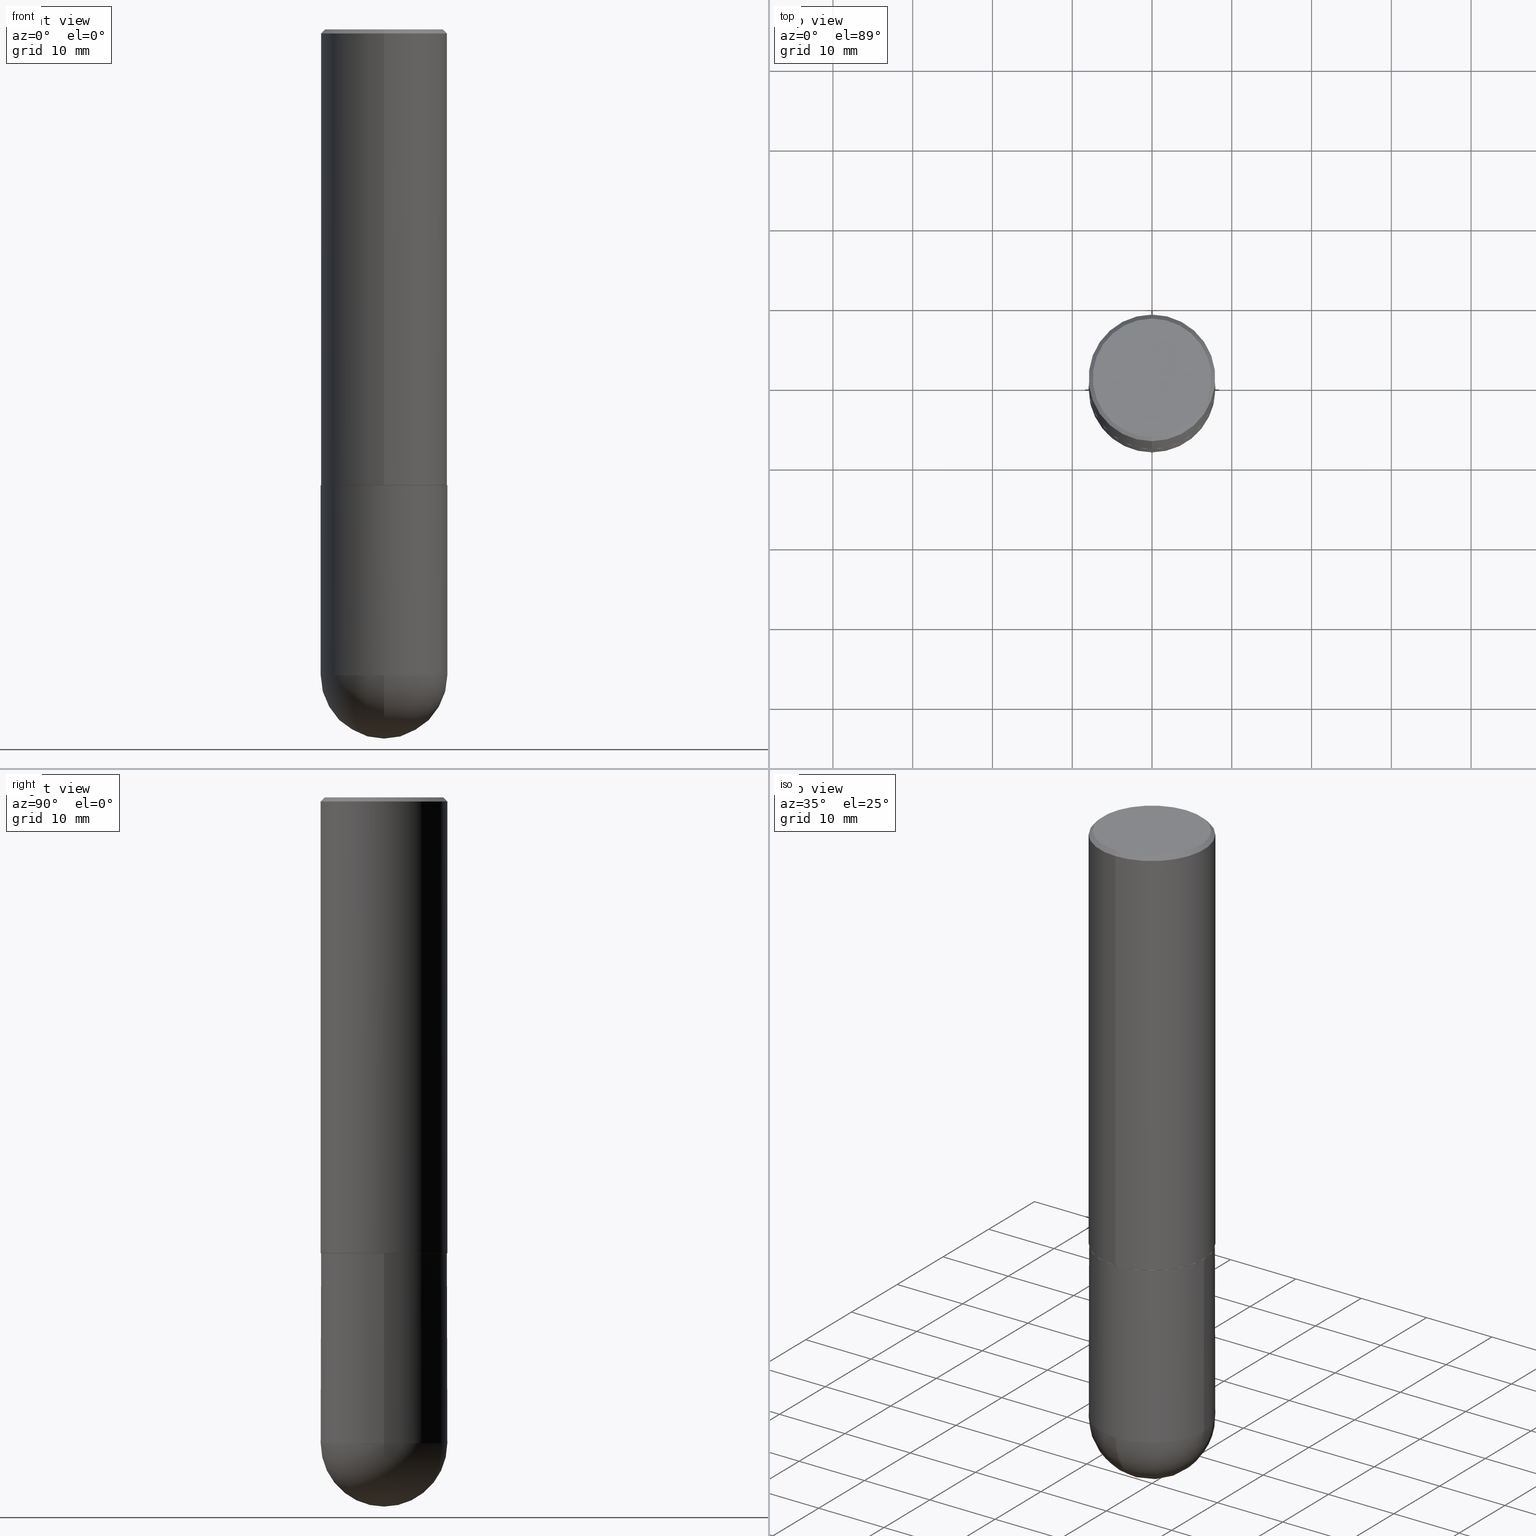
[diagram: canonical four-view strip — front | top / right | iso, engineering-drawing reading convention]
A machine part, canonical four-view strip (front | top / right | iso — engineering-drawing reading convention). The complete STEP part file that produces these views, byte-faithful:
ISO-10303-21;
HEADER;
FILE_DESCRIPTION (( 'STEP AP203' ),
    '1' );
FILE_NAME ('36848.STEP',
    '2024-02-21T19:08:51',
    ( '' ),
    ( '' ),
    'SwSTEP 2.0',
    'SolidWorks 2023',
    '' );
FILE_SCHEMA (( 'CONFIG_CONTROL_DESIGN' ));
ENDSEC;

DATA;
#1 = AXIS2_PLACEMENT_3D ( 'NONE', #403, #365, #40 ) ;
#2 = AXIS2_PLACEMENT_3D ( 'NONE', #387, #322, #61 ) ;
#3 =( NAMED_UNIT ( * ) PLANE_ANGLE_UNIT ( ) SI_UNIT ( $, .RADIAN. ) );
#4 = LINE ( 'NONE', #8, #139 ) ;
#5 = APPROVAL_ROLE ( '' ) ;
#6 = PERSON_AND_ORGANIZATION_ROLE ( 'design_supplier' ) ;
#7 = ADVANCED_FACE ( 'NONE', ( #32 ), #326, .T. ) ;
#8 = CARTESIAN_POINT ( 'NONE',  ( -0.3125000000000000000, 2.220446049250313081E-15, -1.537167215704658232E-29 ) ) ;
#9 = DIRECTION ( 'NONE',  ( 6.982962677686265922E-15, 1.000000000000000000, -3.496765431890253764E-15 ) ) ;
#10 = AXIS2_PLACEMENT_3D ( 'NONE', #306, #308, #16 ) ;
#11 = APPROVAL_STATUS ( 'not_yet_approved' ) ;
#12 = DIRECTION ( 'NONE',  ( -6.982962677686265922E-15, -1.000000000000000000, 3.507991003100177457E-15 ) ) ;
#13 = DIRECTION ( 'NONE',  ( -2.445464617341479708E-29, 3.491487337505676197E-15, 1.000000000000000000 ) ) ;
#14 = EDGE_CURVE ( 'NONE', #260, #277, #238, .T. ) ;
#15 = AXIS2_PLACEMENT_3D ( 'NONE', #176, #298, #80 ) ;
#16 = DIRECTION ( 'NONE',  ( 1.000000000000000000, -6.982962677686269077E-15, 0.000000000000000000 ) ) ;
#17 = VERTEX_POINT ( 'NONE', #290 ) ;
#18 = DIRECTION ( 'NONE',  ( 1.000000000000000000, -6.982962677686265922E-15, 4.883557194083112340E-29 ) ) ;
#19 = ADVANCED_FACE ( 'NONE', ( #235 ), #254, .T. ) ;
#20 = DIRECTION ( 'NONE',  ( 5.024295867788576727E-15, 0.7071067811866224018, 0.7071067811864726327 ) ) ;
#21 = AXIS2_PLACEMENT_3D ( 'NONE', #179, #105, #213 ) ;
#22 = APPROVAL_PERSON_ORGANIZATION ( #104, #324, #178 ) ;
#23 = ORIENTED_EDGE ( 'NONE', *, *, #14, .T. ) ;
#24 = ORIENTED_EDGE ( 'NONE', *, *, #354, .F. ) ;
#25 = CIRCLE ( 'NONE', #15, 0.3125000000000000000 ) ;
#26 = LOCAL_TIME ( 14, 8, 51.00000000000000000, #302 ) ;
#27 = DIRECTION ( 'NONE',  ( -2.445468806185136597E-29, 3.491481338843145583E-15, 1.000000000000000000 ) ) ;
#28 = EDGE_CURVE ( 'NONE', #130, #406, #4, .T. ) ;
#29 = VERTEX_POINT ( 'NONE', #133 ) ;
#30 = DIRECTION ( 'NONE',  ( -2.445464617341479708E-29, 3.491487337505675803E-15, 1.000000000000000000 ) ) ;
#31 = APPLICATION_PROTOCOL_DEFINITION ( 'international standard', 'config_control_design', 1994, #128 ) ;
#32 = FACE_OUTER_BOUND ( 'NONE', #317, .T. ) ;
#33 = VERTEX_POINT ( 'NONE', #388 ) ;
#34 = AXIS2_PLACEMENT_3D ( 'NONE', #296, #320, #393 ) ;
#35 = LOCAL_TIME ( 14, 8, 51.00000000000000000, #140 ) ;
#36 = DIRECTION ( 'NONE',  ( 0.000000000000000000, 0.000000000000000000, 1.000000000000000000 ) ) ;
#37 = ORIENTED_EDGE ( 'NONE', *, *, #212, .T. ) ;
#38 = EDGE_CURVE ( 'NONE', #260, #315, #407, .T. ) ;
#39 = PERSON_AND_ORGANIZATION ( #224, #246 ) ;
#40 = DIRECTION ( 'NONE',  ( -1.000000000000000000, 6.982962677686265922E-15, -4.876176775795935793E-29 ) ) ;
#41 = DIRECTION ( 'NONE',  ( -4.851104656540954809E-15, -0.7071067811865486830, -0.7071067811865462405 ) ) ;
#42 = AXIS2_PLACEMENT_3D ( 'NONE', #195, #27, #161 ) ;
#43 = DIRECTION ( 'NONE',  ( -4.937700262165053702E-15, -0.7071067811866175168, 0.7071067811864775177 ) ) ;
#44 = ORIENTED_EDGE ( 'NONE', *, *, #94, .F. ) ;
#45 = APPROVAL ( #321, 'UNSPECIFIED' ) ;
#46 = CARTESIAN_POINT ( 'NONE',  ( 0.000000000000000000, 0.000000000000000000, 0.000000000000000000 ) ) ;
#47 = CYLINDRICAL_SURFACE ( 'NONE', #54, 0.3125000000000000000 ) ;
#48 = EDGE_LOOP ( 'NONE', ( #188, #76, #375, #318 ) ) ;
#49 = EDGE_CURVE ( 'NONE', #256, #33, #157, .T. ) ;
#50 = CONICAL_SURFACE ( 'NONE', #192, 0.3114999999999999991, 0.7853981633975507526 ) ;
#51 = LINE ( 'NONE', #205, #312 ) ;
#52 = DIRECTION ( 'NONE',  ( -6.982962677686265922E-15, -1.000000000000000000, 3.496765431890253764E-15 ) ) ;
#53 = APPROVAL_DATE_TIME ( #257, #45 ) ;
#54 = AXIS2_PLACEMENT_3D ( 'NONE', #110, #266, #248 ) ;
#55 = ORIENTED_EDGE ( 'NONE', *, *, #112, .F. ) ;
#56 = VERTEX_POINT ( 'NONE', #71 ) ;
#57 = CC_DESIGN_PERSON_AND_ORGANIZATION_ASSIGNMENT ( #93, #79, ( #58 ) ) ;
#58 = PRODUCT ( '36848', '36848', '', ( #122 ) ) ;
#59 = CARTESIAN_POINT ( 'NONE',  ( 2.213340621892766504E-15, 0.3114999999999921720, -2.250000000000000888 ) ) ;
#60 =( NAMED_UNIT ( * ) SI_UNIT ( $, .STERADIAN. ) SOLID_ANGLE_UNIT ( ) );
#61 = DIRECTION ( 'NONE',  ( 1.000000000000000000, -6.982962677686269077E-15, 0.000000000000000000 ) ) ;
#62 = DIRECTION ( 'NONE',  ( -2.445468806185136877E-29, 3.491481338843145188E-15, 1.000000000000000000 ) ) ;
#63 = CIRCLE ( 'NONE', #297, 0.3114999999999999991 ) ;
#64 = COORDINATED_UNIVERSAL_TIME_OFFSET ( 5, 0, .BEHIND. ) ;
#65 = CIRCLE ( 'NONE', #299, 0.2925000000000003153 ) ;
#66 = CIRCLE ( 'NONE', #2, 0.3125000000000000000 ) ;
#67 = CARTESIAN_POINT ( 'NONE',  ( 5.502295389018328433E-29, -7.855846509387772035E-15, -2.249999999999999556 ) ) ;
#68 = CARTESIAN_POINT ( 'NONE',  ( 4.890929234682977809E-31, -6.982974675011377983E-17, -0.02000000000000007327 ) ) ;
#69 = DIRECTION ( 'NONE',  ( -1.000000000000000000, 6.982962677686265922E-15, -4.883557194083112901E-29 ) ) ;
#70 = ORIENTED_EDGE ( 'NONE', *, *, #234, .F. ) ;
#71 = CARTESIAN_POINT ( 'NONE',  ( 2.182175836777035261E-15, 0.3124999999999887867, -3.187500000000000888 ) ) ;
#72 = AXIS2_PLACEMENT_3D ( 'NONE', #259, #100, #136 ) ;
#73 = ADVANCED_FACE ( 'NONE', ( #197 ), #231, .T. ) ;
#74 = APPLICATION_CONTEXT ( 'configuration controlled 3d designs of mechanical parts and assemblies' ) ;
#75 = CALENDAR_DATE ( 2024, 21, 2 ) ;
#76 = ORIENTED_EDGE ( 'NONE', *, *, #354, .T. ) ;
#77 = PERSON_AND_ORGANIZATION ( #224, #246 ) ;
#78 = CYLINDRICAL_SURFACE ( 'NONE', #21, 0.3125000000000002220 ) ;
#79 = PERSON_AND_ORGANIZATION_ROLE ( 'design_owner' ) ;
#80 = DIRECTION ( 'NONE',  ( 1.000000000000000000, -6.982962677686269077E-15, 0.000000000000000000 ) ) ;
#81 = AXIS2_PLACEMENT_3D ( 'NONE', #278, #251, #92 ) ;
#82 = APPROVAL_STATUS ( 'not_yet_approved' ) ;
#83 = CARTESIAN_POINT ( 'NONE',  ( 2.182175836776959530E-15, 0.3125000000000000555, -0.02000000000000116615 ) ) ;
#84 = DIRECTION ( 'NONE',  ( -2.445464617341479708E-29, 3.491487337505676197E-15, 1.000000000000000000 ) ) ;
#85 = PERSON_AND_ORGANIZATION_ROLE ( 'creator' ) ;
#86 = CYLINDRICAL_SURFACE ( 'NONE', #116, 0.3125000000000002220 ) ;
#87 = CARTESIAN_POINT ( 'NONE',  ( 8.241383017002520278E-29, -1.267523194785438148E-14, -3.500000000000000444 ) ) ;
#88 = VECTOR ( 'NONE', #172, 39.37007874015748854 ) ;
#89 = CC_DESIGN_SECURITY_CLASSIFICATION ( #154, ( #300 ) ) ;
#90 = ADVANCED_FACE ( 'NONE', ( #263 ), #50, .T. ) ;
#91 = ORIENTED_EDGE ( 'NONE', *, *, #152, .T. ) ;
#92 = DIRECTION ( 'NONE',  ( 6.982962677686265922E-15, 1.000000000000000000, -3.491487337505675803E-15 ) ) ;
#93 = PERSON_AND_ORGANIZATION ( #224, #246 ) ;
#94 = EDGE_CURVE ( 'NONE', #56, #130, #146, .T. ) ;
#95 =( LENGTH_UNIT ( ) NAMED_UNIT ( * ) SI_UNIT ( $, .METRE. ) );
#96 = ORIENTED_EDGE ( 'NONE', *, *, #189, .F. ) ;
#97 = DIRECTION ( 'NONE',  ( 1.000000000000000000, -6.982962677686266711E-15, 4.876176775795936353E-29 ) ) ;
#98 = DATE_AND_TIME ( #291, #343 ) ;
#99 = AXIS2_PLACEMENT_3D ( 'NONE', #191, #228, #283 ) ;
#100 = DIRECTION ( 'NONE',  ( -1.000000000000000000, 7.105427357601001070E-15, -4.926315508542082329E-29 ) ) ;
#101 = DIRECTION ( 'NONE',  ( -6.982962677686265922E-15, -1.000000000000000000, 3.507991003100177457E-15 ) ) ;
#102 = CARTESIAN_POINT ( 'NONE',  ( 0.000000000000000000, 0.000000000000000000, 0.000000000000000000 ) ) ;
#103 = CIRCLE ( 'NONE', #42, 0.3125000000000000000 ) ;
#104 = PERSON_AND_ORGANIZATION ( #224, #246 ) ;
#105 = DIRECTION ( 'NONE',  ( -2.445464617341479708E-29, 3.491487337505676197E-15, 1.000000000000000000 ) ) ;
#106 = ORIENTED_EDGE ( 'NONE', *, *, #49, .T. ) ;
#107 = APPROVAL_ROLE ( '' ) ;
#108 = PLANE ( 'NONE',  #1 ) ;
#109 = DIRECTION ( 'NONE',  ( -2.445464617341479708E-29, 3.491487337505676197E-15, 1.000000000000000000 ) ) ;
#110 = CARTESIAN_POINT ( 'NONE',  ( 0.000000000000000000, 0.000000000000000000, 0.000000000000000000 ) ) ;
#111 = ORIENTED_EDGE ( 'NONE', *, *, #202, .F. ) ;
#112 = EDGE_CURVE ( 'NONE', #17, #332, #193, .T. ) ;
#113 = DIRECTION ( 'NONE',  ( 1.000000000000000000, -6.982962677686269077E-15, 0.000000000000000000 ) ) ;
#114 = ORIENTED_EDGE ( 'NONE', *, *, #376, .T. ) ;
#115 = EDGE_CURVE ( 'NONE', #17, #56, #103, .T. ) ;
#116 = AXIS2_PLACEMENT_3D ( 'NONE', #46, #396, #247 ) ;
#117 = APPROVAL_PERSON_ORGANIZATION ( #39, #165, #107 ) ;
#118 = CARTESIAN_POINT ( 'NONE',  ( 0.3125000000000000000, -1.003800884917403522E-14, -2.249999999999999556 ) ) ;
#119 = ADVANCED_FACE ( 'NONE', ( #284 ), #352, .F. ) ;
#120 = ORIENTED_EDGE ( 'NONE', *, *, #171, .T. ) ;
#121 = DIRECTION ( 'NONE',  ( -2.445464617341479708E-29, 3.491487337505676197E-15, 1.000000000000000000 ) ) ;
#122 = MECHANICAL_CONTEXT ( 'NONE', #128, 'mechanical' ) ;
#123 = AXIS2_PLACEMENT_3D ( 'NONE', #410, #69, #357 ) ;
#124 = AXIS2_PLACEMENT_3D ( 'NONE', #380, #221, #184 ) ;
#125 = EDGE_CURVE ( 'NONE', #332, #406, #378, .T. ) ;
#126 = ORIENTED_EDGE ( 'NONE', *, *, #14, .F. ) ;
#127 = EDGE_LOOP ( 'NONE', ( #111, #374, #272, #185 ) ) ;
#128 = APPLICATION_CONTEXT ( 'configuration controlled 3d designs of mechanical parts and assemblies' ) ;
#129 = CARTESIAN_POINT ( 'NONE',  ( 7.463812041801236655E-29, -1.160327913570257494E-14, -3.187500000000000000 ) ) ;
#130 = VERTEX_POINT ( 'NONE', #303 ) ;
#131 = CC_DESIGN_APPROVAL ( #165, ( #292 ) ) ;
#132 = ADVANCED_FACE ( 'NONE', ( #328 ), #86, .T. ) ;
#133 = CARTESIAN_POINT ( 'NONE',  ( 2.220446049250342269E-15, 0.3124999999999924505, -2.249000000000000998 ) ) ;
#134 = VERTEX_POINT ( 'NONE', #363 ) ;
#135 = SECURITY_CLASSIFICATION_LEVEL ( 'unclassified' ) ;
#136 = DIRECTION ( 'NONE',  ( -7.105427357601000281E-15, -1.000000000000000000, 0.000000000000000000 ) ) ;
#137 = APPLICATION_PROTOCOL_DEFINITION ( 'international standard', 'config_control_design', 1994, #74 ) ;
#138 = ORIENTED_EDGE ( 'NONE', *, *, #398, .T. ) ;
#139 = VECTOR ( 'NONE', #62, 39.37007874015748143 ) ;
#140 = COORDINATED_UNIVERSAL_TIME_OFFSET ( 5, 0, .BEHIND. ) ;
#141 = DIRECTION ( 'NONE',  ( -2.445464617341479708E-29, 3.491487337505676197E-15, 1.000000000000000000 ) ) ;
#142 = ORIENTED_EDGE ( 'NONE', *, *, #208, .F. ) ;
#143 = DESIGN_CONTEXT ( 'detailed design', #74, 'design' ) ;
#144 = DIRECTION ( 'NONE',  ( -2.445464617341479708E-29, 3.491487337505676197E-15, 1.000000000000000000 ) ) ;
#145 = FACE_OUTER_BOUND ( 'NONE', #200, .T. ) ;
#146 = CIRCLE ( 'NONE', #153, 0.3125000000000000000 ) ;
#147 = CIRCLE ( 'NONE', #392, 0.3125000000000001665 ) ;
#148 = ADVANCED_FACE ( 'NONE', ( #145 ), #397, .T. ) ;
#149 = DIRECTION ( 'NONE',  ( -2.445464617341479708E-29, 3.491487337505675803E-15, 1.000000000000000000 ) ) ;
#150 = CARTESIAN_POINT ( 'NONE',  ( 2.112346210000097415E-15, 0.2925000000000003153, -1.170656228765135543E-15 ) ) ;
#151 = ORIENTED_EDGE ( 'NONE', *, *, #337, .F. ) ;
#152 = EDGE_CURVE ( 'NONE', #406, #332, #25, .T. ) ;
#153 = AXIS2_PLACEMENT_3D ( 'NONE', #385, #233, #198 ) ;
#154 = SECURITY_CLASSIFICATION ( '', '', #135 ) ;
#155 = PLANE ( 'NONE',  #81 ) ;
#156 = FACE_OUTER_BOUND ( 'NONE', #294, .T. ) ;
#157 = CIRCLE ( 'NONE', #72, 0.3125000000000002776 ) ;
#158 = EDGE_LOOP ( 'NONE', ( #37, #383, #151, #70 ) ) ;
#159 = MANIFOLD_SOLID_BREP ( 'Body-Move/Copy2[2]', #236 ) ;
#160 = ORIENTED_EDGE ( 'NONE', *, *, #265, .T. ) ;
#161 = DIRECTION ( 'NONE',  ( 1.000000000000000000, -6.982962677686269077E-15, 0.000000000000000000 ) ) ;
#162 = EDGE_CURVE ( 'NONE', #130, #33, #264, .T. ) ;
#163 = FACE_OUTER_BOUND ( 'NONE', #282, .T. ) ;
#164 = DIRECTION ( 'NONE',  ( -6.982962677686265922E-15, -1.000000000000000000, 3.491487337505675803E-15 ) ) ;
#165 = APPROVAL ( #11, 'UNSPECIFIED' ) ;
#166 = CARTESIAN_POINT ( 'NONE',  ( 5.502295389018328433E-29, -7.855846509387772035E-15, -2.249999999999999556 ) ) ;
#167 = AXIS2_PLACEMENT_3D ( 'NONE', #210, #121, #52 ) ;
#168 = ORIENTED_EDGE ( 'NONE', *, *, #115, .F. ) ;
#169 = CALENDAR_DATE ( 2024, 21, 2 ) ;
#170 = PERSON_AND_ORGANIZATION_ROLE ( 'classification_officer' ) ;
#171 = EDGE_CURVE ( 'NONE', #315, #260, #65, .T. ) ;
#172 = DIRECTION ( 'NONE',  ( 4.937700262164538576E-15, 0.7071067811865437980, -0.7071067811865511255 ) ) ;
#173 = LINE ( 'NONE', #330, #288 ) ;
#174 = CIRCLE ( 'NONE', #250, 0.3125000000000002776 ) ;
#175 = PERSON_AND_ORGANIZATION ( #224, #246 ) ;
#176 = CARTESIAN_POINT ( 'NONE',  ( 5.502304813916556222E-29, -7.855833012397076871E-15, -2.249999999999999556 ) ) ;
#177 = ORIENTED_EDGE ( 'NONE', *, *, #38, .T. ) ;
#178 = APPROVAL_ROLE ( '' ) ;
#179 = CARTESIAN_POINT ( 'NONE',  ( 0.000000000000000000, 0.000000000000000000, 0.000000000000000000 ) ) ;
#180 = CARTESIAN_POINT ( 'NONE',  ( 5.499849924400987156E-29, -7.852355022050265044E-15, -2.248999999999999666 ) ) ;
#181 = LOCAL_TIME ( 14, 8, 51.00000000000000000, #305 ) ;
#182 = DIRECTION ( 'NONE',  ( -2.445464617341479708E-29, 3.491487337505675803E-15, 1.000000000000000000 ) ) ;
#183 = ORIENTED_EDGE ( 'NONE', *, *, #38, .F. ) ;
#184 = DIRECTION ( 'NONE',  ( -6.982962677686265133E-15, -1.000000000000000000, 3.496765431890254947E-15 ) ) ;
#185 = ORIENTED_EDGE ( 'NONE', *, *, #361, .F. ) ;
#186 = CIRCLE ( 'NONE', #386, 0.3125000000000002776 ) ;
#187 = CC_DESIGN_APPROVAL ( #324, ( #300 ) ) ;
#188 = ORIENTED_EDGE ( 'NONE', *, *, #189, .T. ) ;
#189 = EDGE_CURVE ( 'NONE', #204, #134, #63, .T. ) ;
#190 = ORIENTED_EDGE ( 'NONE', *, *, #115, .T. ) ;
#191 = CARTESIAN_POINT ( 'NONE',  ( 4.890929234682977809E-31, -6.982974675011377983E-17, -0.02000000000000007327 ) ) ;
#192 = AXIS2_PLACEMENT_3D ( 'NONE', #166, #286, #101 ) ;
#193 = LINE ( 'NONE', #319, #280 ) ;
#194 = CALENDAR_DATE ( 2024, 21, 2 ) ;
#195 = CARTESIAN_POINT ( 'NONE',  ( 7.794931819715121781E-29, -1.112909676756252622E-14, -3.187500000000000000 ) ) ;
#196 = CC_DESIGN_PERSON_AND_ORGANIZATION_ASSIGNMENT ( #175, #85, ( #292 ) ) ;
#197 = FACE_OUTER_BOUND ( 'NONE', #400, .T. ) ;
#198 = DIRECTION ( 'NONE',  ( 1.000000000000000000, -6.982962677686269077E-15, 0.000000000000000000 ) ) ;
#199 = AXIS2_PLACEMENT_3D ( 'NONE', #412, #214, #113 ) ;
#200 = EDGE_LOOP ( 'NONE', ( #24, #404, #160, #216 ) ) ;
#201 = CONICAL_SURFACE ( 'NONE', #215, 0.3125000000000001665, 0.7853981633974466137 ) ;
#202 = EDGE_CURVE ( 'NONE', #29, #277, #333, .T. ) ;
#203 = PERSON_AND_ORGANIZATION ( #224, #246 ) ;
#204 = VERTEX_POINT ( 'NONE', #336 ) ;
#205 = CARTESIAN_POINT ( 'NONE',  ( -2.182175836776959530E-15, -0.3125000000000002220, 1.091089792970524551E-15 ) ) ;
#206 = APPROVAL_DATE_TIME ( #295, #165 ) ;
#207 = DIRECTION ( 'NONE',  ( -2.445464617341479708E-29, 3.491487337505676197E-15, 1.000000000000000000 ) ) ;
#208 = EDGE_CURVE ( 'NONE', #256, #56, #186, .T. ) ;
#209 = CIRCLE ( 'NONE', #255, 0.3114999999999999991 ) ;
#210 = CARTESIAN_POINT ( 'NONE',  ( 5.499849924400987156E-29, -7.852355022050265044E-15, -2.248999999999999666 ) ) ;
#211 = EDGE_LOOP ( 'NONE', ( #177, #120 ) ) ;
#212 = EDGE_CURVE ( 'NONE', #377, #29, #174, .T. ) ;
#213 = DIRECTION ( 'NONE',  ( -6.982962677686265922E-15, -1.000000000000000000, 3.491487337505676197E-15 ) ) ;
#214 = DIRECTION ( 'NONE',  ( -2.445468806185136597E-29, 3.491481338843145583E-15, 1.000000000000000000 ) ) ;
#215 = AXIS2_PLACEMENT_3D ( 'NONE', #68, #281, #232 ) ;
#216 = ORIENTED_EDGE ( 'NONE', *, *, #287, .F. ) ;
#217 = ADVANCED_FACE ( 'NONE', ( #401 ), #78, .T. ) ;
#218 = ORIENTED_EDGE ( 'NONE', *, *, #398, .F. ) ;
#219 = ADVANCED_BREP_SHAPE_REPRESENTATION ( '36848', ( #307, #159, #379 ), #368 ) ;
#220 = CC_DESIGN_PERSON_AND_ORGANIZATION_ASSIGNMENT ( #389, #170, ( #154 ) ) ;
#221 = DIRECTION ( 'NONE',  ( -2.445464617341479708E-29, 3.491487337505676197E-15, 1.000000000000000000 ) ) ;
#222 = DATE_TIME_ROLE ( 'classification_date' ) ;
#223 = LENGTH_MEASURE_WITH_UNIT ( LENGTH_MEASURE( 0.02539999999999999897 ), #95 );
#224 = PERSON ( 'UNSPECIFIED', 'UNSPECIFIED', 'UNSPECIFIED', ('UNSPECIFIED'), ('UNSPECIFIED'), ('UNSPECIFIED') ) ;
#225 = COORDINATED_UNIVERSAL_TIME_OFFSET ( 5, 0, .BEHIND. ) ;
#226 = AXIS2_PLACEMENT_3D ( 'NONE', #129, #353, #9 ) ;
#227 = EDGE_CURVE ( 'NONE', #134, #204, #209, .T. ) ;
#228 = DIRECTION ( 'NONE',  ( 2.445464617341479708E-29, -3.491487337505676197E-15, -1.000000000000000000 ) ) ;
#229 = DIRECTION ( 'NONE',  ( -2.445468806185136877E-29, 3.491481338843145188E-15, 1.000000000000000000 ) ) ;
#230 = ORIENTED_EDGE ( 'NONE', *, *, #227, .F. ) ;
#231 = CYLINDRICAL_SURFACE ( 'NONE', #359, 0.3125000000000000000 ) ;
#232 = DIRECTION ( 'NONE',  ( 6.982962677686265133E-15, 1.000000000000000000, -3.496765431890254947E-15 ) ) ;
#233 = DIRECTION ( 'NONE',  ( -2.445468806185136597E-29, 3.491481338843145583E-15, 1.000000000000000000 ) ) ;
#234 = EDGE_CURVE ( 'NONE', #377, #395, #51, .T. ) ;
#235 = FACE_OUTER_BOUND ( 'NONE', #390, .T. ) ;
#236 = CLOSED_SHELL ( 'NONE', ( #90, #217, #384, #381, #132, #148, #119, #311 ) ) ;
#237 = CONICAL_SURFACE ( 'NONE', #99, 0.3125000000000001665, 0.7853981633974466137 ) ;
#238 = LINE ( 'NONE', #360, #88 ) ;
#239 = FACE_OUTER_BOUND ( 'NONE', #402, .T. ) ;
#240 = CARTESIAN_POINT ( 'NONE',  ( -2.182175836776905099E-15, -0.3125000000000081601, -2.248999999999998778 ) ) ;
#241 = ORIENTED_EDGE ( 'NONE', *, *, #28, .F. ) ;
#242 = CALENDAR_DATE ( 2024, 21, 2 ) ;
#243 = CARTESIAN_POINT ( 'NONE',  ( 7.463812041801236655E-29, -1.160327913570257494E-14, -3.187500000000000000 ) ) ;
#244 = DIRECTION ( 'NONE',  ( -6.982962677686265133E-15, -1.000000000000000000, 3.496765431890254947E-15 ) ) ;
#245 = ORIENTED_EDGE ( 'NONE', *, *, #171, .F. ) ;
#246 = ORGANIZATION ( 'UNSPECIFIED', 'UNSPECIFIED', '' ) ;
#247 = DIRECTION ( 'NONE',  ( -6.982962677686265922E-15, -1.000000000000000000, 3.491487337505676197E-15 ) ) ;
#248 = DIRECTION ( 'NONE',  ( 1.000000000000000000, -6.982962677686266711E-15, 4.876176775795936353E-29 ) ) ;
#249 = ADVANCED_FACE ( 'NONE', ( #239 ), #47, .T. ) ;
#250 = AXIS2_PLACEMENT_3D ( 'NONE', #180, #207, #273 ) ;
#251 = DIRECTION ( 'NONE',  ( 2.445464617341479708E-29, -3.491487337505675803E-15, -1.000000000000000000 ) ) ;
#252 = ORIENTED_EDGE ( 'NONE', *, *, #28, .T. ) ;
#253 = ORIENTED_EDGE ( 'NONE', *, *, #125, .T. ) ;
#254 = SPHERICAL_SURFACE ( 'NONE', #226, 0.3125000000000002776 ) ;
#255 = AXIS2_PLACEMENT_3D ( 'NONE', #270, #109, #367 ) ;
#256 = VERTEX_POINT ( 'NONE', #87 ) ;
#257 = DATE_AND_TIME ( #194, #350 ) ;
#258 = CARTESIAN_POINT ( 'NONE',  ( 0.000000000000000000, 0.000000000000000000, 0.000000000000000000 ) ) ;
#259 = CARTESIAN_POINT ( 'NONE',  ( 7.463812041801236655E-29, -1.160327913570257494E-14, -3.187500000000000000 ) ) ;
#260 = VERTEX_POINT ( 'NONE', #150 ) ;
#261 = ADVANCED_FACE ( 'NONE', ( #274 ), #108, .F. ) ;
#262 = DATE_AND_TIME ( #169, #181 ) ;
#263 = FACE_OUTER_BOUND ( 'NONE', #48, .T. ) ;
#264 = CIRCLE ( 'NONE', #10, 0.3125000000000000000 ) ;
#265 = EDGE_CURVE ( 'NONE', #204, #377, #173, .T. ) ;
#266 = DIRECTION ( 'NONE',  ( -2.445468806185136597E-29, 3.491481338843145583E-15, 1.000000000000000000 ) ) ;
#267 = ORIENTED_EDGE ( 'NONE', *, *, #49, .F. ) ;
#268 = CC_DESIGN_PERSON_AND_ORGANIZATION_ASSIGNMENT ( #77, #6, ( #300 ) ) ;
#269 = DIMENSIONAL_EXPONENTS ( 1.000000000000000000, 0.000000000000000000, 0.000000000000000000, 0.000000000000000000, 0.000000000000000000, 0.000000000000000000, 0.000000000000000000 ) ;
#270 = CARTESIAN_POINT ( 'NONE',  ( 5.502295389018328433E-29, -7.855846509387772035E-15, -2.249999999999999556 ) ) ;
#271 = CARTESIAN_POINT ( 'NONE',  ( 3.653430783790117894E-45, -5.216148796265909965E-31, -1.493961825447241672E-16 ) ) ;
#272 = ORIENTED_EDGE ( 'NONE', *, *, #234, .T. ) ;
#273 = DIRECTION ( 'NONE',  ( -6.982962677686265922E-15, -1.000000000000000000, 3.496765431890253764E-15 ) ) ;
#274 = FACE_OUTER_BOUND ( 'NONE', #285, .T. ) ;
#275 = SHAPE_DEFINITION_REPRESENTATION ( #358, #219 ) ;
#276 = CC_DESIGN_APPROVAL ( #45, ( #154 ) ) ;
#277 = VERTEX_POINT ( 'NONE', #83 ) ;
#278 = CARTESIAN_POINT ( 'NONE',  ( 2.042516583223234906E-15, 0.2925000000000003153, -1.095958137492773348E-15 ) ) ;
#279 = DIRECTION ( 'NONE',  ( 1.000000000000000000, 0.000000000000000000, 0.000000000000000000 ) ) ;
#280 = VECTOR ( 'NONE', #229, 39.37007874015748143 ) ;
#281 = DIRECTION ( 'NONE',  ( 2.445464617341479708E-29, -3.491487337505676197E-15, -1.000000000000000000 ) ) ;
#282 = EDGE_LOOP ( 'NONE', ( #245, #114, #370, #126 ) ) ;
#283 = DIRECTION ( 'NONE',  ( 6.982962677686265133E-15, 1.000000000000000000, -3.496765431890254947E-15 ) ) ;
#284 = FACE_OUTER_BOUND ( 'NONE', #304, .T. ) ;
#285 = EDGE_LOOP ( 'NONE', ( #253, #91 ) ) ;
#286 = DIRECTION ( 'NONE',  ( -2.445464617341479708E-29, 3.491487337505676197E-15, 1.000000000000000000 ) ) ;
#287 = EDGE_CURVE ( 'NONE', #29, #377, #342, .T. ) ;
#288 = VECTOR ( 'NONE', #43, 39.37007874015748143 ) ;
#289 =( CONVERSION_BASED_UNIT ( 'INCH', #223 ) LENGTH_UNIT ( ) NAMED_UNIT ( #269 ) );
#290 = CARTESIAN_POINT ( 'NONE',  ( 0.3125000000000000000, -1.167464072675676384E-14, -3.187500000000000000 ) ) ;
#291 = CALENDAR_DATE ( 2024, 21, 2 ) ;
#292 = PRODUCT_DEFINITION ( 'UNKNOWN', '', #300, #143 ) ;
#293 = APPROVAL_DATE_TIME ( #262, #324 ) ;
#294 = EDGE_LOOP ( 'NONE', ( #346, #183, #23, #382 ) ) ;
#295 = DATE_AND_TIME ( #75, #35 ) ;
#296 = CARTESIAN_POINT ( 'NONE',  ( 3.653430783790117894E-45, -5.216148796265909965E-31, -1.493961825447241672E-16 ) ) ;
#297 = AXIS2_PLACEMENT_3D ( 'NONE', #399, #13, #371 ) ;
#298 = DIRECTION ( 'NONE',  ( -2.445468806185136597E-29, 3.491481338843145583E-15, 1.000000000000000000 ) ) ;
#299 = AXIS2_PLACEMENT_3D ( 'NONE', #271, #144, #335 ) ;
#300 = PRODUCT_DEFINITION_FORMATION_WITH_SPECIFIED_SOURCE ( 'ANY', '', #58, .NOT_KNOWN. ) ;
#301 = CC_DESIGN_DATE_AND_TIME_ASSIGNMENT ( #98, #222, ( #154 ) ) ;
#302 = COORDINATED_UNIVERSAL_TIME_OFFSET ( 5, 0, .BEHIND. ) ;
#303 = CARTESIAN_POINT ( 'NONE',  ( -0.3125000000000000000, -7.272018840729490833E-15, -3.187500000000000000 ) ) ;
#304 = EDGE_LOOP ( 'NONE', ( #96, #230 ) ) ;
#305 = COORDINATED_UNIVERSAL_TIME_OFFSET ( 5, 0, .BEHIND. ) ;
#306 = CARTESIAN_POINT ( 'NONE',  ( 7.794931819715121781E-29, -1.112909676756252622E-14, -3.187500000000000000 ) ) ;
#307 = MANIFOLD_SOLID_BREP ( 'Body-Move/Copy2[1]', #325 ) ;
#308 = DIRECTION ( 'NONE',  ( -2.445468806185136597E-29, 3.491481338843145583E-15, 1.000000000000000000 ) ) ;
#309 = VECTOR ( 'NONE', #20, 39.37007874015748143 ) ;
#310 = CARTESIAN_POINT ( 'NONE',  ( 2.220446049250314264E-15, 0.3125000000000002220, -1.091089792970524551E-15 ) ) ;
#311 = ADVANCED_FACE ( 'NONE', ( #339 ), #155, .F. ) ;
#312 = VECTOR ( 'NONE', #182, 39.37007874015748143 ) ;
#313 = CC_DESIGN_DATE_AND_TIME_ASSIGNMENT ( #366, #334, ( #292 ) ) ;
#314 = VECTOR ( 'NONE', #41, 39.37007874015748854 ) ;
#315 = VERTEX_POINT ( 'NONE', #405 ) ;
#316 = ORIENTED_EDGE ( 'NONE', *, *, #152, .F. ) ;
#317 = EDGE_LOOP ( 'NONE', ( #142, #106, #341, #44 ) ) ;
#318 = ORIENTED_EDGE ( 'NONE', *, *, #265, .F. ) ;
#319 = CARTESIAN_POINT ( 'NONE',  ( 0.3125000000000000000, -2.182175836776958347E-15, 1.523805242436230075E-29 ) ) ;
#320 = DIRECTION ( 'NONE',  ( -2.445464617341479708E-29, 3.491487337505676197E-15, 1.000000000000000000 ) ) ;
#321 = APPROVAL_STATUS ( 'not_yet_approved' ) ;
#322 = DIRECTION ( 'NONE',  ( -2.445468806185136597E-29, 3.491481338843145583E-15, 1.000000000000000000 ) ) ;
#323 = DIRECTION ( 'NONE',  ( -2.445468806185136597E-29, 3.491481338843145583E-15, 1.000000000000000000 ) ) ;
#324 = APPROVAL ( #82, 'UNSPECIFIED' ) ;
#325 = CLOSED_SHELL ( 'NONE', ( #249, #7, #19, #261, #73 ) ) ;
#326 = SPHERICAL_SURFACE ( 'NONE', #123, 0.3125000000000002776 ) ;
#327 = CARTESIAN_POINT ( 'NONE',  ( -2.143905624303604008E-15, -0.3125000000000002220, -0.01999999999999898040 ) ) ;
#328 = FACE_OUTER_BOUND ( 'NONE', #127, .T. ) ;
#329 = AXIS2_PLACEMENT_3D ( 'NONE', #394, #141, #12 ) ;
#330 = CARTESIAN_POINT ( 'NONE',  ( -2.175192874099216718E-15, -0.3115000000000078817, -2.249999999999998668 ) ) ;
#331 = APPROVAL_PERSON_ORGANIZATION ( #347, #45, #5 ) ;
#332 = VERTEX_POINT ( 'NONE', #118 ) ;
#333 = LINE ( 'NONE', #310, #349 ) ;
#334 = DATE_TIME_ROLE ( 'creation_date' ) ;
#335 = DIRECTION ( 'NONE',  ( -6.982962677686265922E-15, -1.000000000000000000, 3.491487337505676197E-15 ) ) ;
#336 = CARTESIAN_POINT ( 'NONE',  ( -2.175192874099216718E-15, -0.3115000000000078817, -2.249999999999998668 ) ) ;
#337 = EDGE_CURVE ( 'NONE', #395, #277, #351, .T. ) ;
#338 = CC_DESIGN_PERSON_AND_ORGANIZATION_ASSIGNMENT ( #203, #362, ( #300 ) ) ;
#339 = FACE_OUTER_BOUND ( 'NONE', #211, .T. ) ;
#340 = ORIENTED_EDGE ( 'NONE', *, *, #208, .T. ) ;
#341 = ORIENTED_EDGE ( 'NONE', *, *, #162, .F. ) ;
#342 = CIRCLE ( 'NONE', #167, 0.3125000000000002776 ) ;
#343 = LOCAL_TIME ( 14, 8, 51.00000000000000000, #225 ) ;
#344 = LINE ( 'NONE', #59, #309 ) ;
#345 = ORIENTED_EDGE ( 'NONE', *, *, #112, .T. ) ;
#346 = ORIENTED_EDGE ( 'NONE', *, *, #376, .F. ) ;
#347 = PERSON_AND_ORGANIZATION ( #224, #246 ) ;
#348 = ORIENTED_EDGE ( 'NONE', *, *, #94, .T. ) ;
#349 = VECTOR ( 'NONE', #149, 39.37007874015748143 ) ;
#350 = LOCAL_TIME ( 14, 8, 51.00000000000000000, #64 ) ;
#351 = CIRCLE ( 'NONE', #124, 0.3125000000000001665 ) ;
#352 = PLANE ( 'NONE',  #391 ) ;
#353 = DIRECTION ( 'NONE',  ( -1.000000000000000000, 6.982962677686265922E-15, -4.883557194083112901E-29 ) ) ;
#354 = EDGE_CURVE ( 'NONE', #134, #29, #344, .T. ) ;
#355 = ORIENTED_EDGE ( 'NONE', *, *, #162, .T. ) ;
#356 = CARTESIAN_POINT ( 'NONE',  ( -0.3125000000000000000, -7.272018840729487678E-15, -2.249999999999999556 ) ) ;
#357 = DIRECTION ( 'NONE',  ( 6.982962677686265922E-15, 1.000000000000000000, -3.496765431890253764E-15 ) ) ;
#358 = PRODUCT_DEFINITION_SHAPE ( 'NONE', 'NONE',  #292 ) ;
#359 = AXIS2_PLACEMENT_3D ( 'NONE', #102, #323, #97 ) ;
#360 = CARTESIAN_POINT ( 'NONE',  ( 2.182175836776959530E-15, 0.3125000000000000555, -0.02000000000000116615 ) ) ;
#361 = EDGE_CURVE ( 'NONE', #277, #395, #147, .T. ) ;
#362 = PERSON_AND_ORGANIZATION_ROLE ( 'creator' ) ;
#363 = CARTESIAN_POINT ( 'NONE',  ( 2.216893335571567797E-15, 0.3114999999999921720, -2.250000000000000888 ) ) ;
#364 = UNCERTAINTY_MEASURE_WITH_UNIT (LENGTH_MEASURE( 1.000000000000000082E-05 ), #289, 'distance_accuracy_value', 'NONE');
#365 = DIRECTION ( 'NONE',  ( 2.438088387897960049E-29, -3.491481338843145188E-15, -1.000000000000000000 ) ) ;
#366 = DATE_AND_TIME ( #242, #26 ) ;
#367 = DIRECTION ( 'NONE',  ( -6.982962677686265922E-15, -1.000000000000000000, 3.507991003100177457E-15 ) ) ;
#368 =( GEOMETRIC_REPRESENTATION_CONTEXT ( 3 ) GLOBAL_UNCERTAINTY_ASSIGNED_CONTEXT ( ( #364 ) ) GLOBAL_UNIT_ASSIGNED_CONTEXT ( ( #289, #3, #60 ) ) REPRESENTATION_CONTEXT ( 'NONE', 'WORKASPACE' ) );
#369 = LINE ( 'NONE', #327, #314 ) ;
#370 = ORIENTED_EDGE ( 'NONE', *, *, #337, .T. ) ;
#371 = DIRECTION ( 'NONE',  ( -6.982962677686265922E-15, -1.000000000000000000, 3.507991003100177457E-15 ) ) ;
#372 = DIRECTION ( 'NONE',  ( 6.982962677686265922E-15, 1.000000000000000000, 0.000000000000000000 ) ) ;
#373 = CARTESIAN_POINT ( 'NONE',  ( 4.890929234682977809E-31, -6.982974675011377983E-17, -0.02000000000000007327 ) ) ;
#374 = ORIENTED_EDGE ( 'NONE', *, *, #287, .T. ) ;
#375 = ORIENTED_EDGE ( 'NONE', *, *, #212, .F. ) ;
#376 = EDGE_CURVE ( 'NONE', #315, #395, #369, .T. ) ;
#377 = VERTEX_POINT ( 'NONE', #240 ) ;
#378 = CIRCLE ( 'NONE', #199, 0.3125000000000000000 ) ;
#379 = AXIS2_PLACEMENT_3D ( 'NONE', #258, #36, #279 ) ;
#380 = CARTESIAN_POINT ( 'NONE',  ( 4.890929234682977809E-31, -6.982974675011377983E-17, -0.02000000000000007327 ) ) ;
#381 = ADVANCED_FACE ( 'NONE', ( #156 ), #237, .T. ) ;
#382 = ORIENTED_EDGE ( 'NONE', *, *, #361, .T. ) ;
#383 = ORIENTED_EDGE ( 'NONE', *, *, #202, .T. ) ;
#384 = ADVANCED_FACE ( 'NONE', ( #163 ), #201, .T. ) ;
#385 = CARTESIAN_POINT ( 'NONE',  ( 7.794931819715121781E-29, -1.112909676756252622E-14, -3.187500000000000000 ) ) ;
#386 = AXIS2_PLACEMENT_3D ( 'NONE', #243, #18, #372 ) ;
#387 = CARTESIAN_POINT ( 'NONE',  ( 7.794931819715121781E-29, -1.112909676756252622E-14, -3.187500000000000000 ) ) ;
#388 = CARTESIAN_POINT ( 'NONE',  ( -2.220446049250237350E-15, -0.3125000000000114908, -3.187499999999998668 ) ) ;
#389 = PERSON_AND_ORGANIZATION ( #224, #246 ) ;
#390 = EDGE_LOOP ( 'NONE', ( #267, #340, #168, #218 ) ) ;
#391 = AXIS2_PLACEMENT_3D ( 'NONE', #67, #30, #164 ) ;
#392 = AXIS2_PLACEMENT_3D ( 'NONE', #373, #84, #244 ) ;
#393 = DIRECTION ( 'NONE',  ( -6.982962677686265922E-15, -1.000000000000000000, 3.491487337505676197E-15 ) ) ;
#394 = CARTESIAN_POINT ( 'NONE',  ( 5.502295389018328433E-29, -7.855846509387772035E-15, -2.249999999999999556 ) ) ;
#395 = VERTEX_POINT ( 'NONE', #409 ) ;
#396 = DIRECTION ( 'NONE',  ( -2.445464617341479708E-29, 3.491487337505676197E-15, 1.000000000000000000 ) ) ;
#397 = CONICAL_SURFACE ( 'NONE', #329, 0.3114999999999999991, 0.7853981633975507526 ) ;
#398 = EDGE_CURVE ( 'NONE', #33, #17, #66, .T. ) ;
#399 = CARTESIAN_POINT ( 'NONE',  ( 5.502295389018328433E-29, -7.855846509387772035E-15, -2.249999999999999556 ) ) ;
#400 = EDGE_LOOP ( 'NONE', ( #241, #355, #138, #345, #316 ) ) ;
#401 = FACE_OUTER_BOUND ( 'NONE', #158, .T. ) ;
#402 = EDGE_LOOP ( 'NONE', ( #348, #252, #408, #55, #190 ) ) ;
#403 = CARTESIAN_POINT ( 'NONE',  ( 2.182175836777013173E-15, 0.3124999999999921729, -2.250000000000000888 ) ) ;
#404 = ORIENTED_EDGE ( 'NONE', *, *, #227, .T. ) ;
#405 = CARTESIAN_POINT ( 'NONE',  ( -2.075300644325889465E-15, -0.2925000000000003153, 8.718638636756871588E-16 ) ) ;
#406 = VERTEX_POINT ( 'NONE', #356 ) ;
#407 = CIRCLE ( 'NONE', #34, 0.2925000000000003153 ) ;
#408 = ORIENTED_EDGE ( 'NONE', *, *, #125, .F. ) ;
#409 = CARTESIAN_POINT ( 'NONE',  ( -2.143905624303604008E-15, -0.3125000000000002220, -0.01999999999999898040 ) ) ;
#410 = CARTESIAN_POINT ( 'NONE',  ( 7.463812041801236655E-29, -1.160327913570257494E-14, -3.187500000000000000 ) ) ;
#411 = PRODUCT_RELATED_PRODUCT_CATEGORY ( 'detail', '', ( #58 ) ) ;
#412 = CARTESIAN_POINT ( 'NONE',  ( 5.502304813916556222E-29, -7.855833012397076871E-15, -2.249999999999999556 ) ) ;
ENDSEC;
END-ISO-10303-21;
